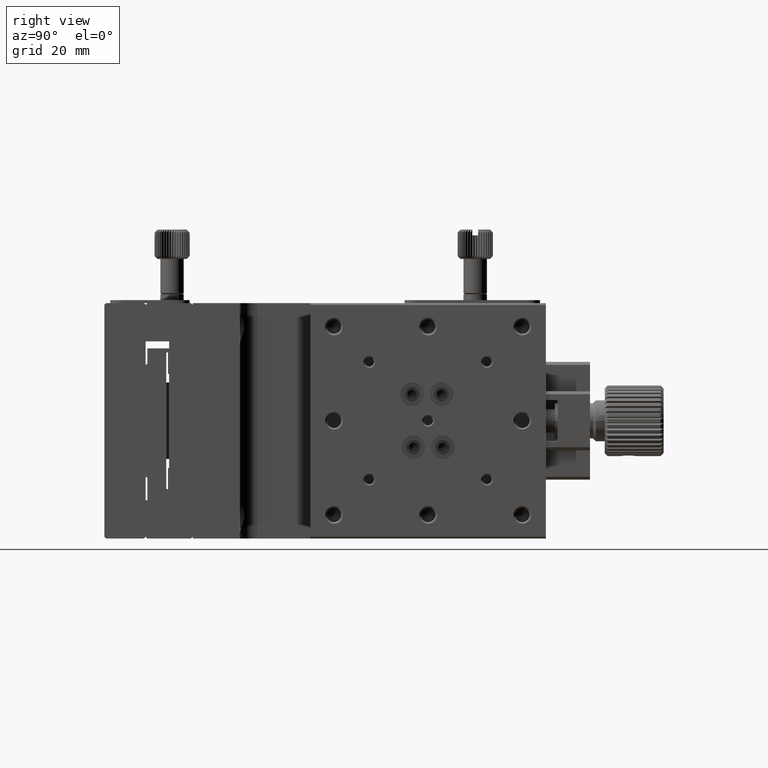
[diagram: clean part render]
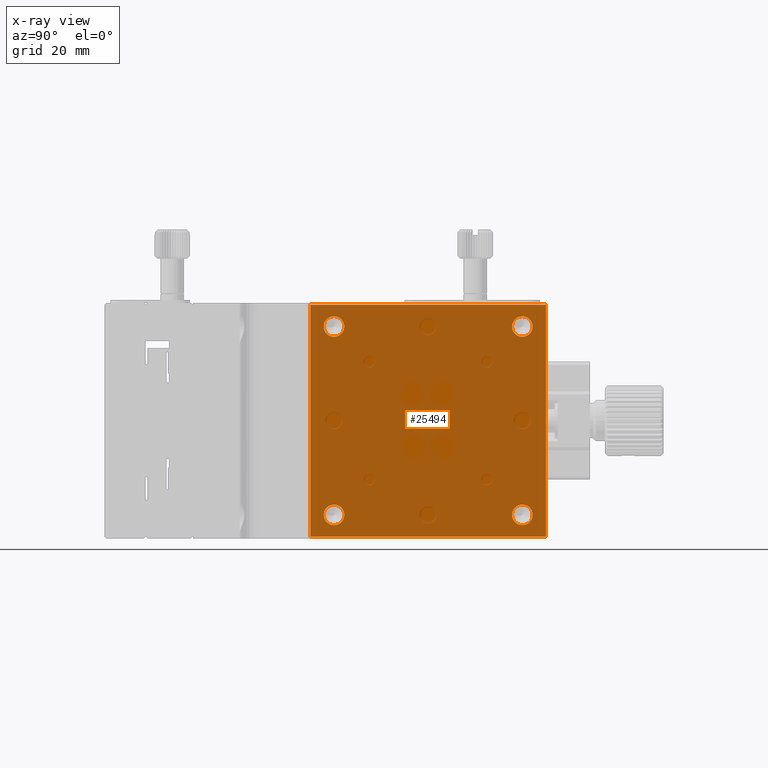
[diagram: x-ray — body ghosted, one internal face saturated and labeled with its STEP entity id]
A machine part, right view, then the same camera in x-ray: the body is ghosted and one INTERNAL B-rep face — a face not visible from any outside direction — is saturated and labeled: STEP entity #25494.
In plain terms, the highlighted planar face has unit normal (1, 0, -0).
Its self-contained STEP definition (entity closure, byte-faithful):
#143 = VECTOR ( 'NONE', #7704, 1000.000000000000000 ) ;
#208 = VERTEX_POINT ( 'NONE', #10484 ) ;
#305 = CARTESIAN_POINT ( 'NONE',  ( 16.00000000000000000, 23.99999999999999289, -5.749999999999994671 ) ) ;
#670 = EDGE_CURVE ( 'NONE', #5141, #5141, #28473, .T. ) ;
#3192 = DIRECTION ( 'NONE',  ( -1.000000000000000000, 0.000000000000000000, 0.000000000000000000 ) ) ;
#3344 = EDGE_CURVE ( 'NONE', #19952, #19952, #34869, .T. ) ;
#4282 = VERTEX_POINT ( 'NONE', #33310 ) ;
#4457 = ORIENTED_EDGE ( 'NONE', *, *, #670, .F. ) ;
#4926 = AXIS2_PLACEMENT_3D ( 'NONE', #17588, #20310, #34282 ) ;
#5141 = VERTEX_POINT ( 'NONE', #35385 ) ;
#5196 = DIRECTION ( 'NONE',  ( 0.000000000000000000, 0.000000000000000000, -1.000000000000000000 ) ) ;
#5539 = LINE ( 'NONE', #11149, #143 ) ;
#5567 = DIRECTION ( 'NONE',  ( -1.000000000000000000, 0.000000000000000000, 0.000000000000000000 ) ) ;
#5886 = CARTESIAN_POINT ( 'NONE',  ( 16.00000000000000000, 55.99999999999999289, -3.999999999999994671 ) ) ;
#6137 = AXIS2_PLACEMENT_3D ( 'NONE', #29163, #5567, #5196 ) ;
#6920 = EDGE_LOOP ( 'NONE', ( #32660 ) ) ;
#7431 = FACE_BOUND ( 'NONE', #17704, .T. ) ;
#7640 = VECTOR ( 'NONE', #26437, 1000.000000000000000 ) ;
#7704 = DIRECTION ( 'NONE',  ( 0.000000000000000000, 0.000000000000000000, 1.000000000000000000 ) ) ;
#8853 = EDGE_LOOP ( 'NONE', ( #32403 ) ) ;
#8970 = DIRECTION ( 'NONE',  ( 0.000000000000000000, 0.000000000000000000, -1.000000000000000000 ) ) ;
#9692 = LINE ( 'NONE', #34852, #7640 ) ;
#10484 = CARTESIAN_POINT ( 'NONE',  ( 16.00000000000000000, 60.00000000000000000, -39.69999999999999574 ) ) ;
#11058 = EDGE_CURVE ( 'NONE', #31930, #31930, #12465, .T. ) ;
#11149 = CARTESIAN_POINT ( 'NONE',  ( 16.00000000000000000, 60.00000000000000000, -0.2999999999999781175 ) ) ;
#11596 = EDGE_LOOP ( 'NONE', ( #4457 ) ) ;
#11930 = EDGE_CURVE ( 'NONE', #25129, #25129, #34851, .T. ) ;
#12013 = VECTOR ( 'NONE', #22963, 1000.000000000000000 ) ;
#12132 = LINE ( 'NONE', #28308, #12013 ) ;
#12465 = CIRCLE ( 'NONE', #4926, 1.750000000000001554 ) ;
#12693 = FACE_BOUND ( 'NONE', #8853, .T. ) ;
#13551 = AXIS2_PLACEMENT_3D ( 'NONE', #5886, #3192, #8970 ) ;
#13671 = CARTESIAN_POINT ( 'NONE',  ( 16.00000000000000000, 19.99999999999999645, -39.69999999999999574 ) ) ;
#13741 = EDGE_LOOP ( 'NONE', ( #31780, #34249, #21309, #24948 ) ) ;
#15239 = FACE_BOUND ( 'NONE', #6920, .T. ) ;
#15747 = FACE_OUTER_BOUND ( 'NONE', #13741, .T. ) ;
#16161 = DIRECTION ( 'NONE',  ( -1.000000000000000000, 0.000000000000000000, 0.000000000000000000 ) ) ;
#17028 = EDGE_CURVE ( 'NONE', #208, #32978, #5539, .T. ) ;
#17588 = CARTESIAN_POINT ( 'NONE',  ( 16.00000000000000000, 55.99999999999999289, -36.00000000000000000 ) ) ;
#17704 = EDGE_LOOP ( 'NONE', ( #21534 ) ) ;
#19901 = DIRECTION ( 'NONE',  ( -0.000000000000000000, -0.000000000000000000, -1.000000000000000000 ) ) ;
#19952 = VERTEX_POINT ( 'NONE', #305 ) ;
#20310 = DIRECTION ( 'NONE',  ( -1.000000000000000000, 0.000000000000000000, 0.000000000000000000 ) ) ;
#21309 = ORIENTED_EDGE ( 'NONE', *, *, #25740, .F. ) ;
#21331 = PLANE ( 'NONE',  #29182 ) ;
#21534 = ORIENTED_EDGE ( 'NONE', *, *, #3344, .F. ) ;
#21976 = EDGE_CURVE ( 'NONE', #22487, #208, #9692, .T. ) ;
#22487 = VERTEX_POINT ( 'NONE', #13671 ) ;
#22622 = CARTESIAN_POINT ( 'NONE',  ( 16.00000000000000000, 23.99999999999999289, -37.75000000000000000 ) ) ;
#22963 = DIRECTION ( 'NONE',  ( 0.000000000000000000, -1.000000000000000000, 0.000000000000000000 ) ) ;
#23950 = VECTOR ( 'NONE', #19901, 1000.000000000000000 ) ;
#24627 = CARTESIAN_POINT ( 'NONE',  ( 16.00000000000000000, 23.99999999999999289, -3.999999999999994671 ) ) ;
#24943 = CARTESIAN_POINT ( 'NONE',  ( 16.00000000000000000, 19.99999999999999645, -0.2999999999999781175 ) ) ;
#24948 = ORIENTED_EDGE ( 'NONE', *, *, #17028, .F. ) ;
#25129 = VERTEX_POINT ( 'NONE', #22622 ) ;
#25494 = ADVANCED_FACE ( 'NONE', ( #15747, #31902, #15239, #12693, #7431 ), #21331, .F. ) ;
#25740 = EDGE_CURVE ( 'NONE', #32978, #4282, #12132, .T. ) ;
#26437 = DIRECTION ( 'NONE',  ( -0.000000000000000000, 1.000000000000000000, -0.000000000000000000 ) ) ;
#26543 = DIRECTION ( 'NONE',  ( 1.000000000000000000, 0.000000000000000000, -0.000000000000000000 ) ) ;
#27795 = LINE ( 'NONE', #24943, #23950 ) ;
#28308 = CARTESIAN_POINT ( 'NONE',  ( 16.00000000000000000, 19.99999999999999645, -0.2999999999999781175 ) ) ;
#28473 = CIRCLE ( 'NONE', #13551, 1.749999999999999778 ) ;
#29163 = CARTESIAN_POINT ( 'NONE',  ( 16.00000000000000000, 23.99999999999999289, -36.00000000000000000 ) ) ;
#29182 = AXIS2_PLACEMENT_3D ( 'NONE', #32071, #26543, #29573 ) ;
#29573 = DIRECTION ( 'NONE',  ( 0.000000000000000000, 0.000000000000000000, 1.000000000000000000 ) ) ;
#30027 = CARTESIAN_POINT ( 'NONE',  ( 16.00000000000000000, 60.00000000000000000, -0.2999999999999780620 ) ) ;
#30342 = DIRECTION ( 'NONE',  ( 0.000000000000000000, 0.000000000000000000, -1.000000000000000000 ) ) ;
#31780 = ORIENTED_EDGE ( 'NONE', *, *, #21976, .F. ) ;
#31902 = FACE_BOUND ( 'NONE', #11596, .T. ) ;
#31930 = VERTEX_POINT ( 'NONE', #32636 ) ;
#32071 = CARTESIAN_POINT ( 'NONE',  ( 16.00000000000000000, 19.99999999999999645, -0.2999999999999781175 ) ) ;
#32403 = ORIENTED_EDGE ( 'NONE', *, *, #11930, .F. ) ;
#32636 = CARTESIAN_POINT ( 'NONE',  ( 16.00000000000000000, 55.99999999999999289, -37.75000000000000000 ) ) ;
#32660 = ORIENTED_EDGE ( 'NONE', *, *, #11058, .F. ) ;
#32978 = VERTEX_POINT ( 'NONE', #30027 ) ;
#33310 = CARTESIAN_POINT ( 'NONE',  ( 16.00000000000000000, 19.99999999999999645, -0.2999999999999780620 ) ) ;
#33406 = EDGE_CURVE ( 'NONE', #4282, #22487, #27795, .T. ) ;
#34249 = ORIENTED_EDGE ( 'NONE', *, *, #33406, .F. ) ;
#34282 = DIRECTION ( 'NONE',  ( 0.000000000000000000, 0.000000000000000000, -1.000000000000000000 ) ) ;
#34303 = AXIS2_PLACEMENT_3D ( 'NONE', #24627, #16161, #30342 ) ;
#34851 = CIRCLE ( 'NONE', #6137, 1.750000000000001554 ) ;
#34852 = CARTESIAN_POINT ( 'NONE',  ( 16.00000000000000000, 19.99999999999999645, -39.69999999999999574 ) ) ;
#34869 = CIRCLE ( 'NONE', #34303, 1.749999999999999778 ) ;
#35385 = CARTESIAN_POINT ( 'NONE',  ( 16.00000000000000000, 55.99999999999999289, -5.749999999999994671 ) ) ;